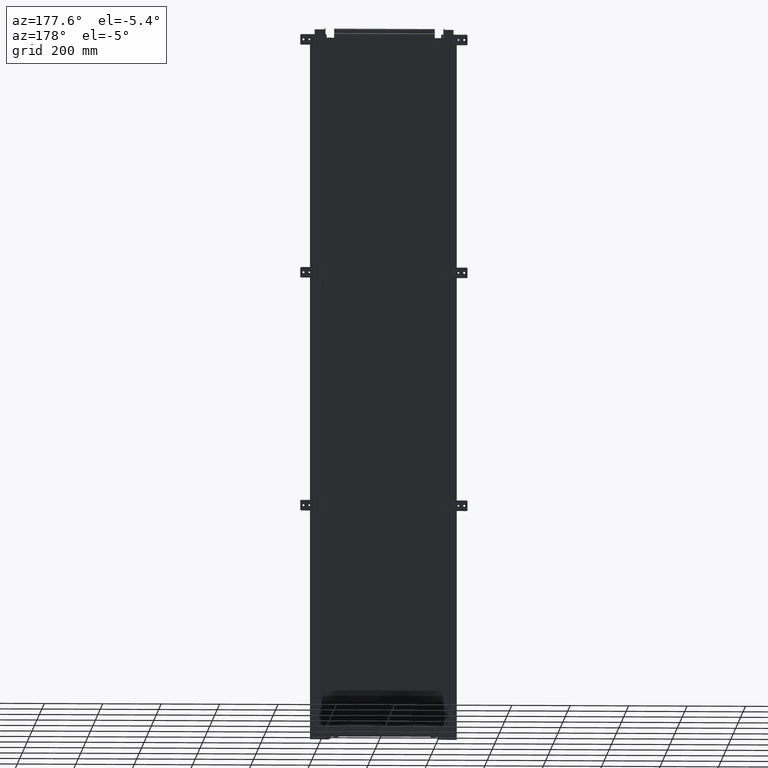
[diagram: clean part render]
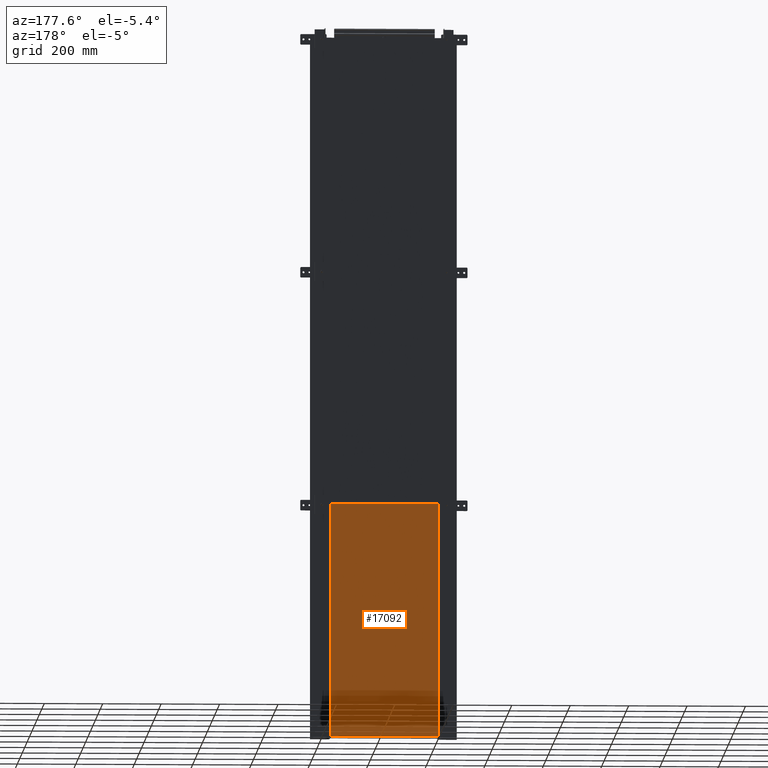
[diagram: same view with one face highlighted and labeled with its STEP entity id]
A machine part, auxiliary view. The second image highlights one B-rep face of the part: STEP entity #17092.
In plain terms, the highlighted planar face has unit normal (0, 1, 0).
Its self-contained STEP definition (entity closure, byte-faithful):
#16977=DIRECTION('',(1.E0,0.E0,0.E0));
#16978=VECTOR('',#16977,3.695E2);
#16979=CARTESIAN_POINT('',(-1.8475E2,3.E0,4.E2));
#16980=LINE('',#16979,#16978);
#16981=DIRECTION('',(0.E0,0.E0,1.E0));
#16982=VECTOR('',#16981,8.E2);
#16983=CARTESIAN_POINT('',(-1.8475E2,3.E0,-4.E2));
#16984=LINE('',#16983,#16982);
#16985=DIRECTION('',(-1.E0,0.E0,0.E0));
#16986=VECTOR('',#16985,3.695E2);
#16987=CARTESIAN_POINT('',(1.8475E2,3.E0,-4.E2));
#16988=LINE('',#16987,#16986);
#16989=DIRECTION('',(0.E0,0.E0,-1.E0));
#16990=VECTOR('',#16989,8.E2);
#16991=CARTESIAN_POINT('',(1.8475E2,3.E0,4.E2));
#16992=LINE('',#16991,#16990);
#17001=CARTESIAN_POINT('',(-1.8475E2,3.E0,4.E2));
#17002=CARTESIAN_POINT('',(1.8475E2,3.E0,4.E2));
#17003=VERTEX_POINT('',#17001);
#17004=VERTEX_POINT('',#17002);
#17005=CARTESIAN_POINT('',(1.8475E2,3.E0,-4.E2));
#17006=VERTEX_POINT('',#17005);
#17007=CARTESIAN_POINT('',(-1.8475E2,3.E0,-4.E2));
#17008=VERTEX_POINT('',#17007);
#17081=CARTESIAN_POINT('',(0.E0,3.E0,0.E0));
#17082=DIRECTION('',(0.E0,1.E0,0.E0));
#17083=DIRECTION('',(1.E0,0.E0,0.E0));
#17084=AXIS2_PLACEMENT_3D('',#17081,#17082,#17083);
#17085=PLANE('',#17084);
#17086=ORIENTED_EDGE('',*,*,#17033,.F.);
#17087=ORIENTED_EDGE('',*,*,#17048,.F.);
#17088=ORIENTED_EDGE('',*,*,#17062,.F.);
#17089=ORIENTED_EDGE('',*,*,#17075,.F.);
#17090=EDGE_LOOP('',(#17086,#17087,#17088,#17089));
#17091=FACE_OUTER_BOUND('',#17090,.F.);
#17033=EDGE_CURVE('',#17003,#17004,#16980,.T.);
#17048=EDGE_CURVE('',#17008,#17003,#16984,.T.);
#17062=EDGE_CURVE('',#17006,#17008,#16988,.T.);
#17075=EDGE_CURVE('',#17004,#17006,#16992,.T.);
#17092=ADVANCED_FACE('',(#17091),#17085,.T.);